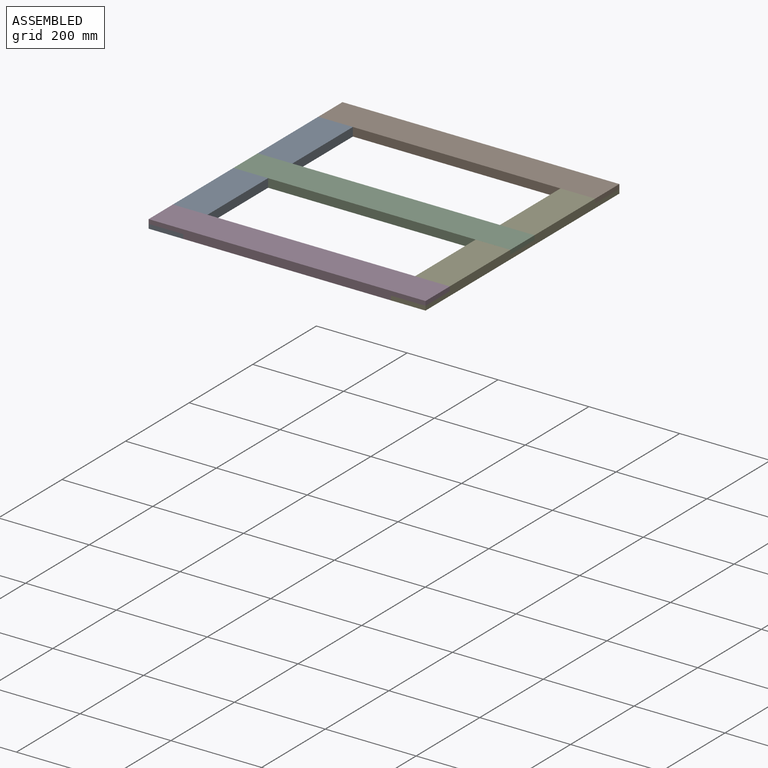
[diagram: assembled view]
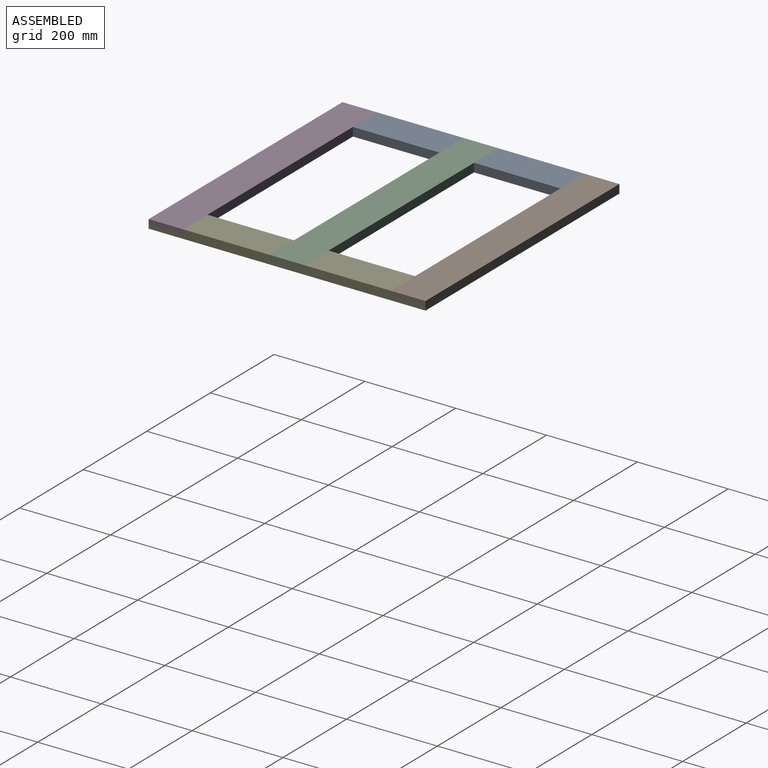
[diagram: assembled view, second angle]
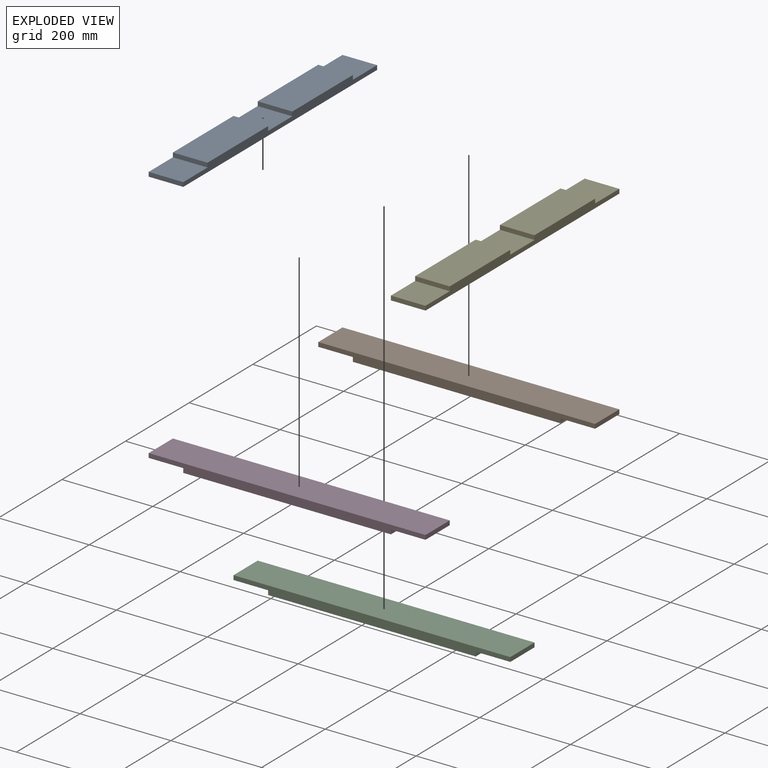
[diagram: exploded view]
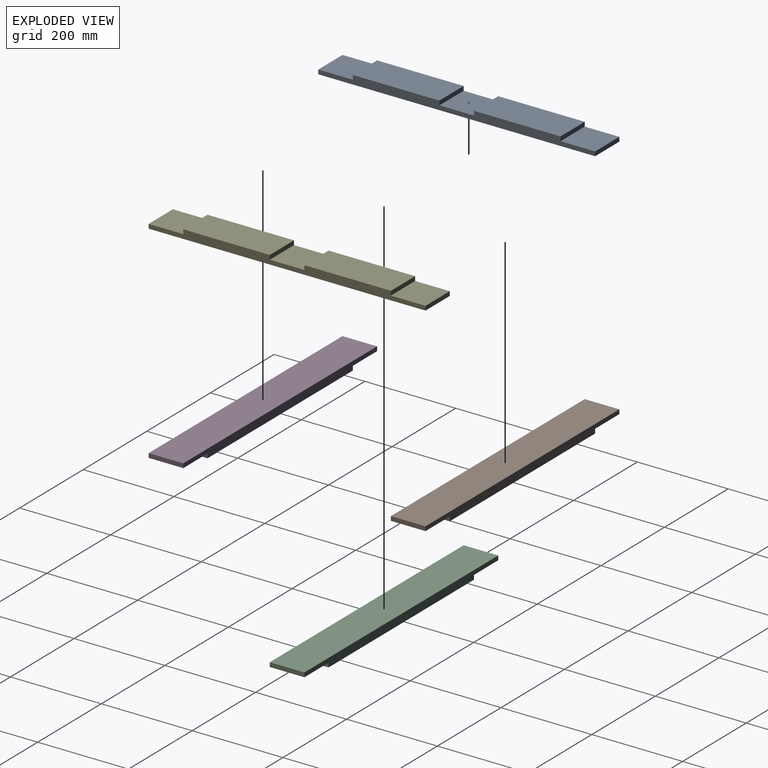
[diagram: exploded view, second angle]
ASSEMBLY  parts=5 mates=4
PART A: 14 faces, bbox 76.2x609.6x19.1 mm
  f0: plane 190.5x76.2mm, normal (0,0,1), area 14516.1mm2, adj f1,f2,f10,f12
  f1: plane 609.6x19.05mm, normal (1,0,0), area 9435.5mm2, adj f0,f3,f4,f5,f6,f7,f8,f9
  f2: plane 609.6x19.05mm, normal (-1,0,0), area 9435.5mm2, adj f0,f3,f4,f5,f6,f7,f8,f9
  f3: plane 190.5x76.2mm, normal (0,0,1), area 14516.1mm2, adj f1,f2,f8,f13
  f4: plane 76.2x9.53mm, normal (0,1,0), area 725.8mm2, adj f1,f2,f6,f7
  f5: plane 76.2x9.53mm, normal (0,-1,0), area 725.8mm2, adj f1,f2,f6,f9
  f6: plane 609.6x76.2mm, normal (0,0,-1), area 46451.5mm2, adj f1,f2,f4,f5
  f7: plane 76.2x76.2mm, normal (0,0,1), area 5806.4mm2, adj f1,f2,f4,f8
  f8: plane 76.2x9.53mm, normal (0,1,0), area 725.8mm2, adj f1,f2,f3,f7
  f9: plane 76.2x76.2mm, normal (0,0,1), area 5806.4mm2, adj f1,f2,f5,f10
  f10: plane 76.2x9.53mm, normal (0,-1,0), area 725.8mm2, adj f0,f1,f2,f9
  f11: plane 76.2x76.2mm, normal (0,0,1), area 5806.4mm2, adj f1,f2,f12,f13
  f12: plane 76.2x9.53mm, normal (0,1,0), area 725.8mm2, adj f0,f1,f2,f11
  f13: plane 76.2x9.53mm, normal (0,-1,0), area 725.8mm2, adj f1,f2,f3,f11
PART B: 10 faces, bbox 609.6x76.2x19.1 mm
  f0: plane 609.6x19.05mm, normal (0,1,0), area 10161.3mm2, adj f1,f2,f4,f5,f6,f7,f8,f9
  f1: plane 457.2x76.2mm, normal (0,0,-1), area 34838.6mm2, adj f0,f3,f6,f8
  f2: plane 76.2x9.53mm, normal (-1,0,0), area 725.8mm2, adj f0,f3,f5,f7
  f3: plane 609.6x19.05mm, normal (0,-1,0), area 10161.3mm2, adj f1,f2,f4,f5,f6,f7,f8,f9
  f4: plane 76.2x9.53mm, normal (1,0,0), area 725.8mm2, adj f0,f3,f5,f9
  f5: plane 609.6x76.2mm, normal (0,0,1), area 46451.5mm2, adj f0,f2,f3,f4
  f6: plane 76.2x9.53mm, normal (-1,0,0), area 725.8mm2, adj f0,f1,f3,f7
  f7: plane 76.2x76.2mm, normal (0,0,-1), area 5806.4mm2, adj f0,f2,f3,f6
  f8: plane 76.2x9.53mm, normal (1,0,0), area 725.8mm2, adj f0,f1,f3,f9
  f9: plane 76.2x76.2mm, normal (0,0,-1), area 5806.4mm2, adj f0,f3,f4,f8
PART C: same geometry as B
PART D: same geometry as B
PART E: same geometry as A
PLACE A at identity
PLACE B at identity
PLACE C t=(0,-266.7,0)mm
PLACE D t=(0,-533.4,0)mm
PLACE E t=(533.4,0,0)mm
MATE fastened D.f5 <-> A.f0  axis (0,0,1) through (-72.93,-3.8,19.05)mm
MATE fastened C.f5 <-> A.f0  axis (0,0,1) through (-72.93,186.7,19.05)mm
MATE fastened D.f5 <-> E.f0  axis (0,0,1) through (536.67,-3.8,19.05)mm
MATE fastened B.f5 <-> A.f3  axis (0,0,1) through (-72.93,453.4,19.05)mm
